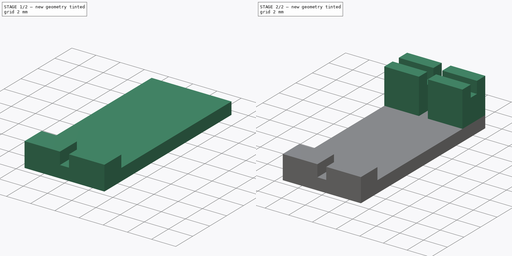
[diagram: build sequence overview — one tinted view per stage of 2, left to right]
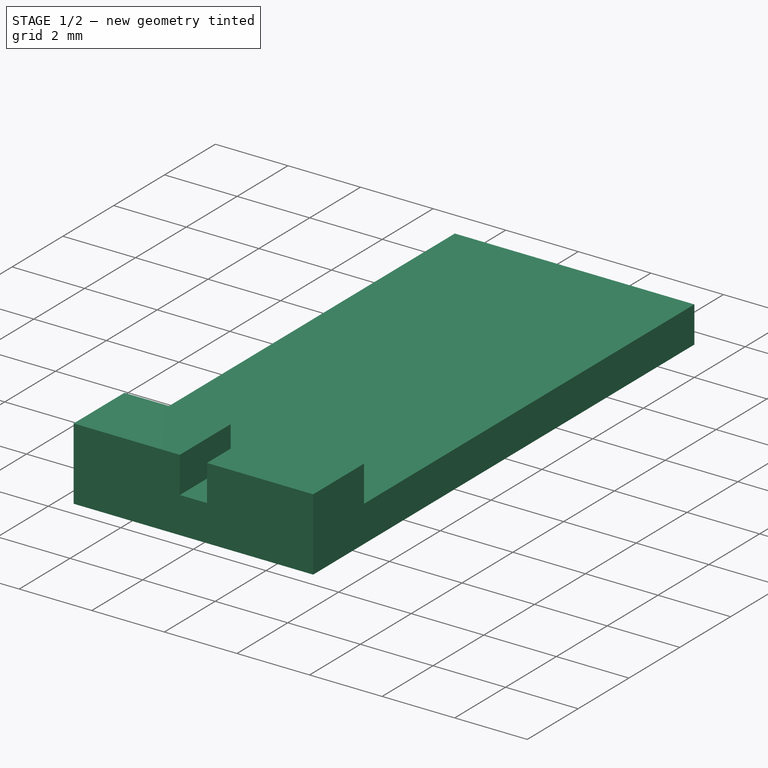
[diagram: stage 1 of 2 — iso view after this stage's code; geometry added in this stage tinted green]
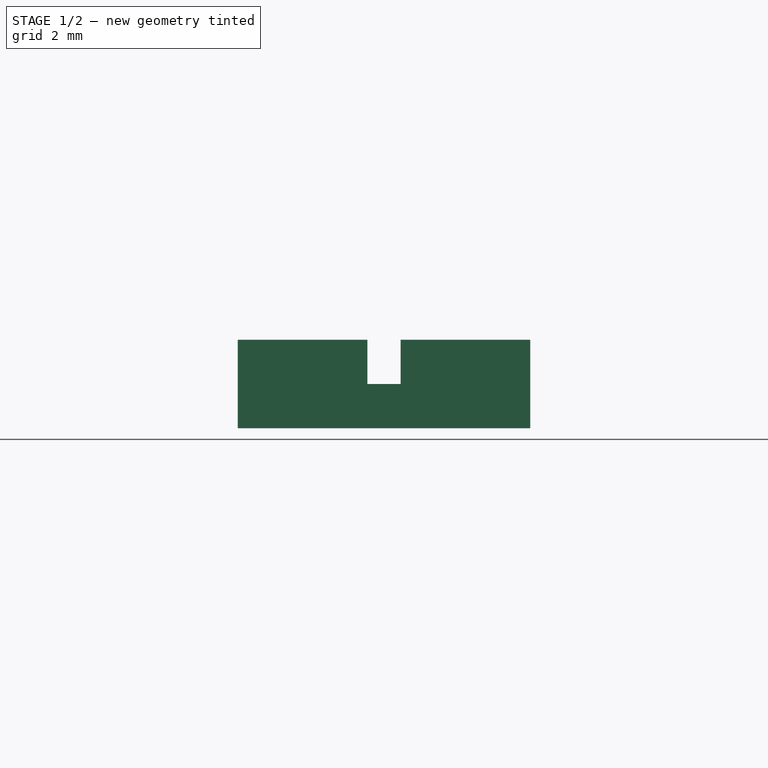
[diagram: stage 1 of 2 — front view after this stage's code; geometry added in this stage tinted green]
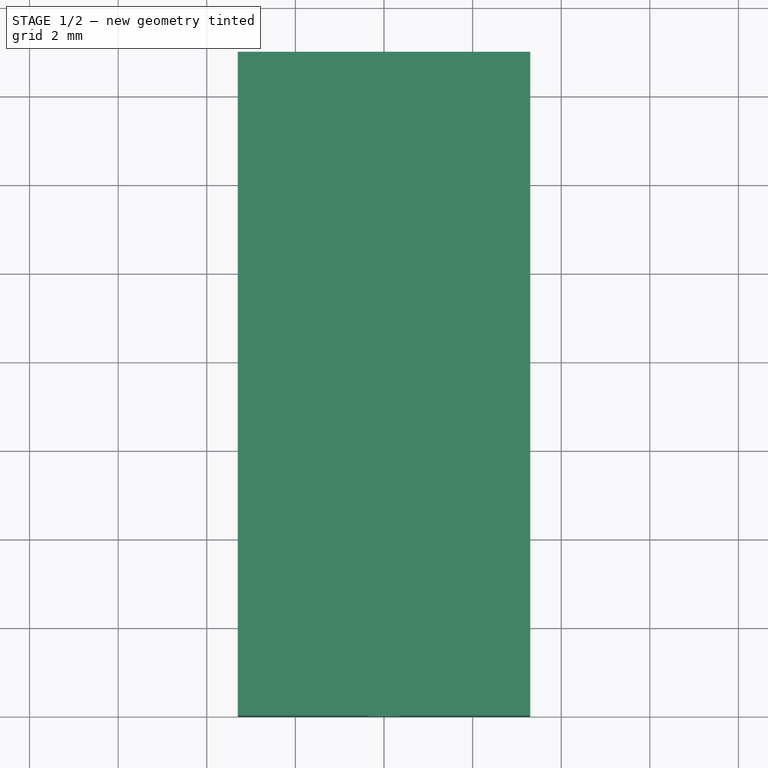
[diagram: stage 1 of 2 — top view after this stage's code; geometry added in this stage tinted green]
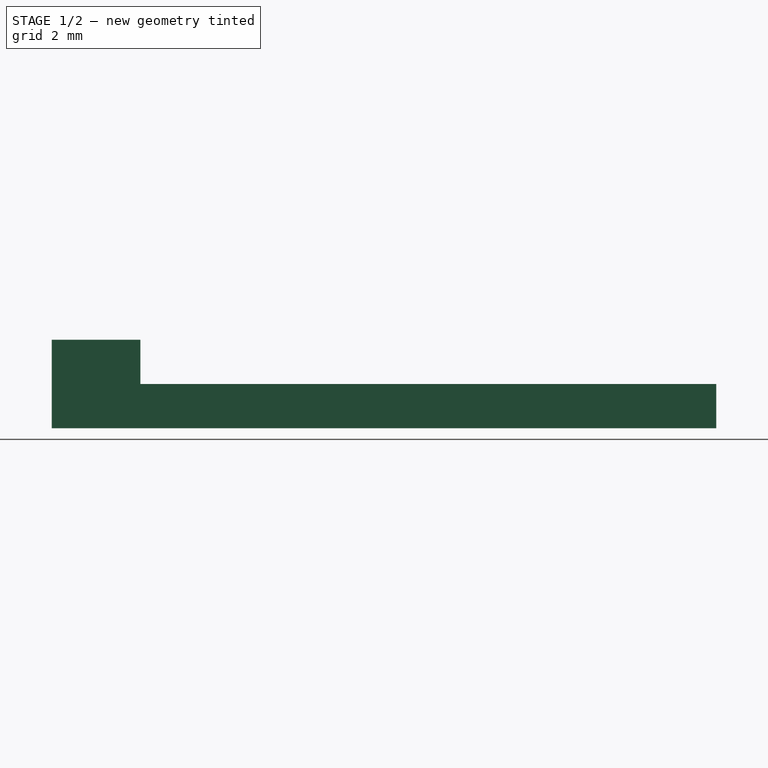
[diagram: stage 1 of 2 — right view after this stage's code; geometry added in this stage tinted green]
FCSTD DOCUMENT  (FreeCAD 0.16R6707 (Git))
Label: BallBoopSensor
License: All rights reserved
LicenseURL: http://en.wikipedia.org/wiki/All_rights_reserved
objects: Sketcher::SketchObject×4, PartDesign::Pad×3, PartDesign::Pocket×1
note: 12 computed .brp shape members not serialized (recipe doc carries the construction recipe); baked Part::Feature solids carry a one-line shape summary decoded from their .brp

FEATURE [Sketcher::SketchObject] Sketch
  sketch-geometry (4):
    g0: LineSegment StartX=-3.3 StartY=0 StartZ=0 EndX=3.3 EndY=0 EndZ=0
    g1: LineSegment StartX=3.3 StartY=0 StartZ=0 EndX=3.3 EndY=15 EndZ=0
    g2: LineSegment StartX=3.3 StartY=15 StartZ=0 EndX=-3.3 EndY=15 EndZ=0
    g3: LineSegment StartX=-3.3 StartY=15 StartZ=0 EndX=-3.3 EndY=0 EndZ=0
  constraints (12):
    c: Coincident(g0,g1)
    c: Coincident(g1,g2)
    c: Coincident(g2,g3)
    c: Coincident(g3,g0)
    c: Horizontal(g0)
    c: Horizontal(g2)
    c: Vertical(g1)
    c: Vertical(g3)
    c: PointOnObject(g0,g-1)
    c: Symmetric(g0,g0,g-2)
    c: Distance(g0) = 6.6
    c: Distance(g3) = 15
FEATURE [PartDesign::Pad] Pad
  Length = 1
  Length2 = 100
  Sketch = -> Sketch
  Type = 0
FEATURE [Sketcher::SketchObject] Sketch001
  ExternalGeometry = -> [Pad]
  Placement = pos=(0,0,1) rot=(0,0,1;0rad)
  Support = -> Pad [Face6]
  sketch-geometry (8):
    g0: LineSegment StartX=-3.3 StartY=0 StartZ=0 EndX=-0.375 EndY=0 EndZ=0
    g1: LineSegment StartX=-0.375 StartY=0 StartZ=0 EndX=-0.375 EndY=2 EndZ=0
    g2: LineSegment StartX=-0.375 StartY=2 StartZ=0 EndX=-3.3 EndY=2 EndZ=0
    g3: LineSegment StartX=-3.3 StartY=2 StartZ=0 EndX=-3.3 EndY=0 EndZ=0
    g4: LineSegment StartX=0.375 StartY=2 StartZ=0 EndX=3.3 EndY=2 EndZ=0
    g5: LineSegment StartX=3.3 StartY=2 StartZ=0 EndX=3.3 EndY=0 EndZ=0
    g6: LineSegment StartX=3.3 StartY=0 StartZ=0 EndX=0.375 EndY=0 EndZ=0
    g7: LineSegment StartX=0.375 StartY=0 StartZ=0 EndX=0.375 EndY=2 EndZ=0
  constraints (21):
    c: Coincident(g0,g1)
    c: Coincident(g1,g2)
    c: Coincident(g2,g3)
    c: Coincident(g3,g0)
    c: Horizontal(g0)
    c: Horizontal(g2)
    c: Vertical(g1)
    c: Vertical(g3)
    c: Coincident(g4,g5)
    c: Coincident(g5,g6)
    c: Coincident(g6,g7)
    c: Coincident(g7,g4)
    c: Horizontal(g4)
    c: Horizontal(g6)
    c: Vertical(g5)
    c: Vertical(g7)
    c: Symmetric(g1,g4,g-2)
    c: Symmetric(g0,g5,g-2)
    c: Coincident(g0,g-3)
    c: Distance(g0,g6) = 0.75
    c: Distance(g1) = 2
FEATURE [PartDesign::Pad] Pad001
  Length = 1
  Length2 = 100
  Sketch = -> Sketch001
  Type = 0
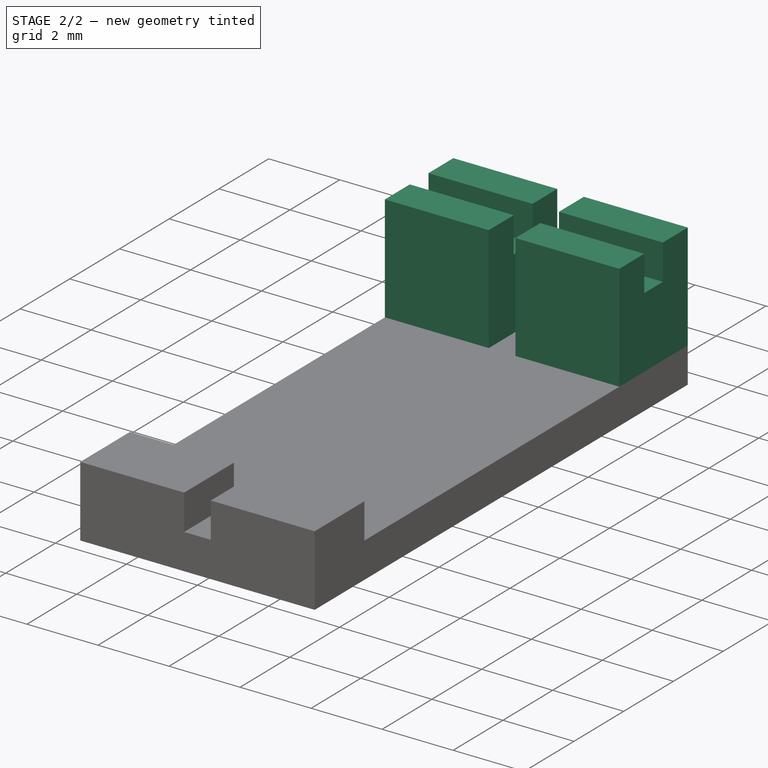
[diagram: stage 2 of 2 — iso view after this stage's code; geometry added in this stage tinted green]
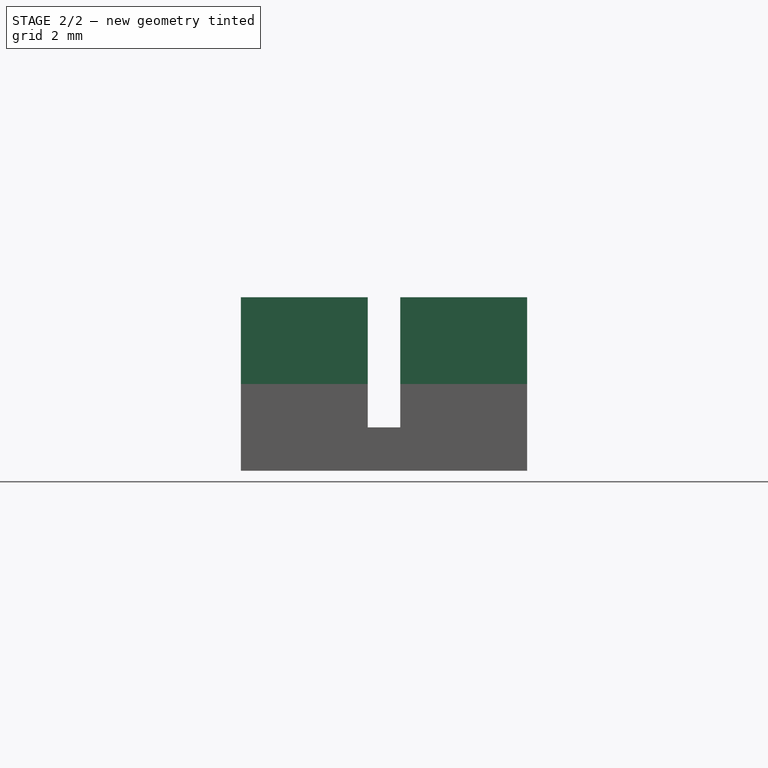
[diagram: stage 2 of 2 — front view after this stage's code; geometry added in this stage tinted green]
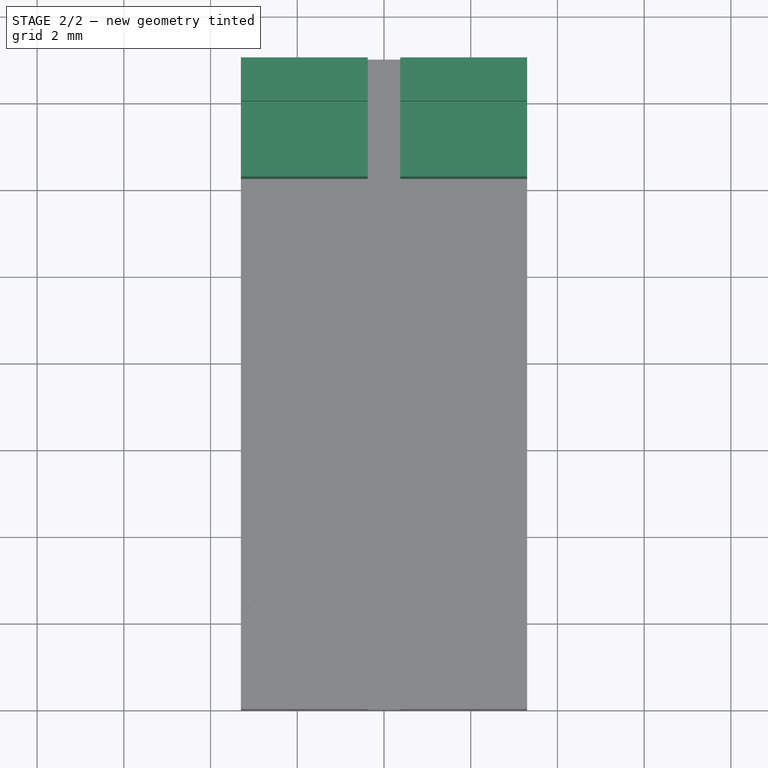
[diagram: stage 2 of 2 — top view after this stage's code; geometry added in this stage tinted green]
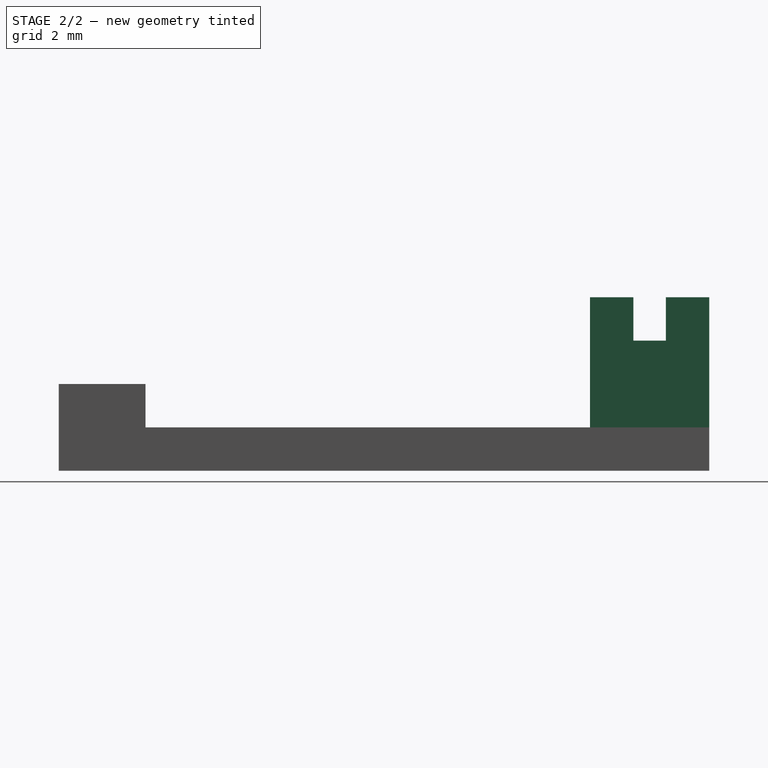
[diagram: stage 2 of 2 — right view after this stage's code; geometry added in this stage tinted green]
FEATURE [Sketcher::SketchObject] Sketch002
  ExternalGeometry = -> [Pad001]
  Placement = pos=(-3.3,0,0) rot=(0.57735,-0.57735,-0.57735;2.0944rad)
  Support = -> Pad001 [Face5]
  sketch-geometry (8):
    g0: LineSegment StartX=-15 StartY=0 StartZ=0 EndX=-12.25 EndY=0 EndZ=0
    g1: LineSegment StartX=-12.25 StartY=0 StartZ=0 EndX=-12.25 EndY=4 EndZ=0
    g2: LineSegment StartX=-15 StartY=4 StartZ=0 EndX=-15 EndY=0 EndZ=0
    g3: LineSegment StartX=-15 StartY=4 StartZ=0 EndX=-14 EndY=4 EndZ=0
    g4: LineSegment StartX=-14 StartY=4 StartZ=0 EndX=-14 EndY=3 EndZ=0
    g5: LineSegment StartX=-14 StartY=3 StartZ=0 EndX=-13.25 EndY=3 EndZ=0
    g6: LineSegment StartX=-13.25 StartY=3 StartZ=0 EndX=-13.25 EndY=4 EndZ=0
    g7: LineSegment StartX=-13.25 StartY=4 StartZ=0 EndX=-12.25 EndY=4 EndZ=0
  constraints (23):
    c: Coincident(g0,g1)
    c: Coincident(g2,g0)
    c: Horizontal(g0)
    c: Vertical(g1)
    c: Vertical(g2)
    c: Coincident(g0,g-3)
    c: Equal(g2,g1)
    c: Coincident(g2,g3)
    c: Horizontal(g3)
    c: Coincident(g3,g4)
    c: Vertical(g4)
    c: Coincident(g4,g5)
    c: Horizontal(g5)
    c: Coincident(g5,g6)
    c: Vertical(g6)
    c: Coincident(g6,g7)
    c: Coincident(g7,g1)
    c: Horizontal(g7)
    c: Equal(g3,g7)
    c: Distance(g5) = 0.75
    c: Distance(g4) = 1
    c: Distance(g3) = 1
    c: DistanceY(g-3,g4) = 2
FEATURE [PartDesign::Pad] Pad002
  Length = 6.6
  Length2 = 100
  Reversed = true
  Sketch = -> Sketch002
  Type = 0
FEATURE [Sketcher::SketchObject] Sketch003
  ExternalGeometry = -> [Pad002]
  Placement = pos=(0,0,0) rot=(1,0,0;1.5708rad)
  Support = -> Pad002 [Face4]
  sketch-geometry (4):
    g0: LineSegment StartX=-0.375 StartY=1 StartZ=0 EndX=0.375 EndY=1 EndZ=0
    g1: LineSegment StartX=0.375 StartY=1 StartZ=0 EndX=0.375 EndY=4 EndZ=0
    g2: LineSegment StartX=0.375 StartY=4 StartZ=0 EndX=-0.375 EndY=4 EndZ=0
    g3: LineSegment StartX=-0.375 StartY=4 StartZ=0 EndX=-0.375 EndY=1 EndZ=0
  constraints (11):
    c: Coincident(g0,g1)
    c: Coincident(g1,g2)
    c: Coincident(g2,g3)
    c: Coincident(g3,g0)
    c: Horizontal(g0)
    c: Horizontal(g2)
    c: Vertical(g1)
    c: Vertical(g3)
    c: Coincident(g0,g-4)
    c: PointOnObject(g1,g-3)
    c: Symmetric(g0,g0,g-2)
FEATURE [PartDesign::Pocket] Pocket
  Length = 5
  Sketch = -> Sketch003
  Type = 1
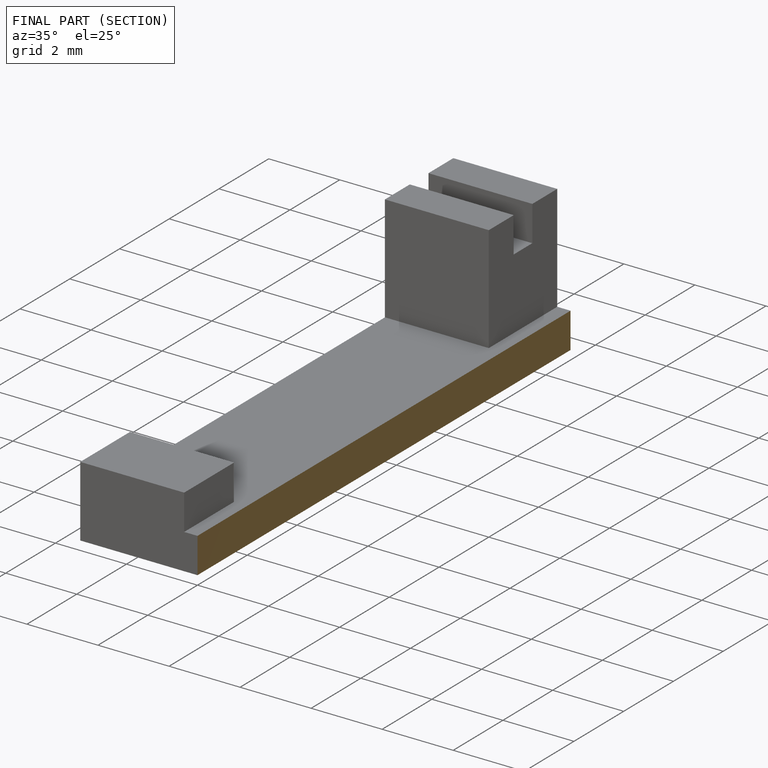
[diagram: finished part — half-section view (interior)]
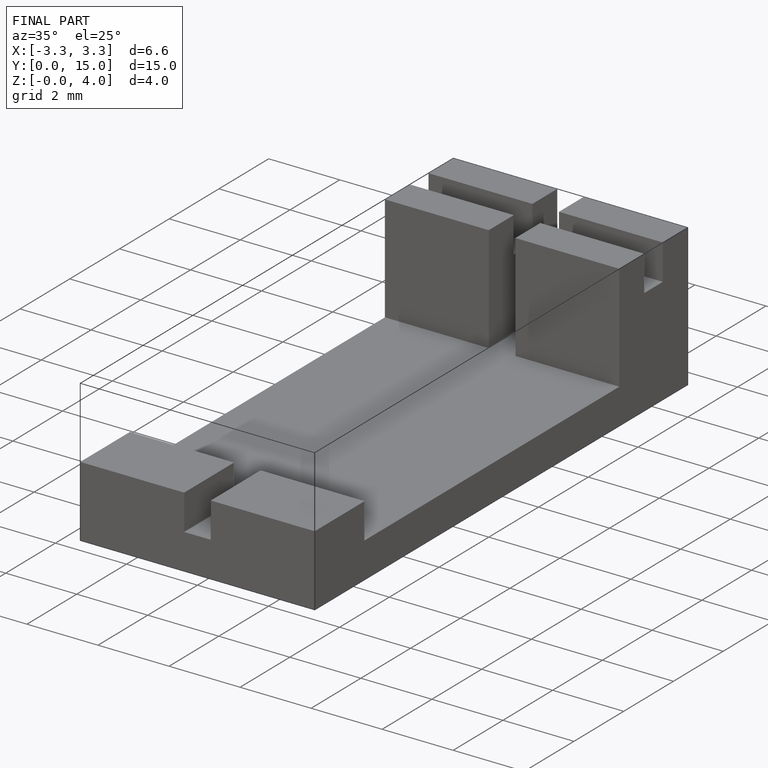
[diagram: finished part — iso view with bounding-box wireframe]
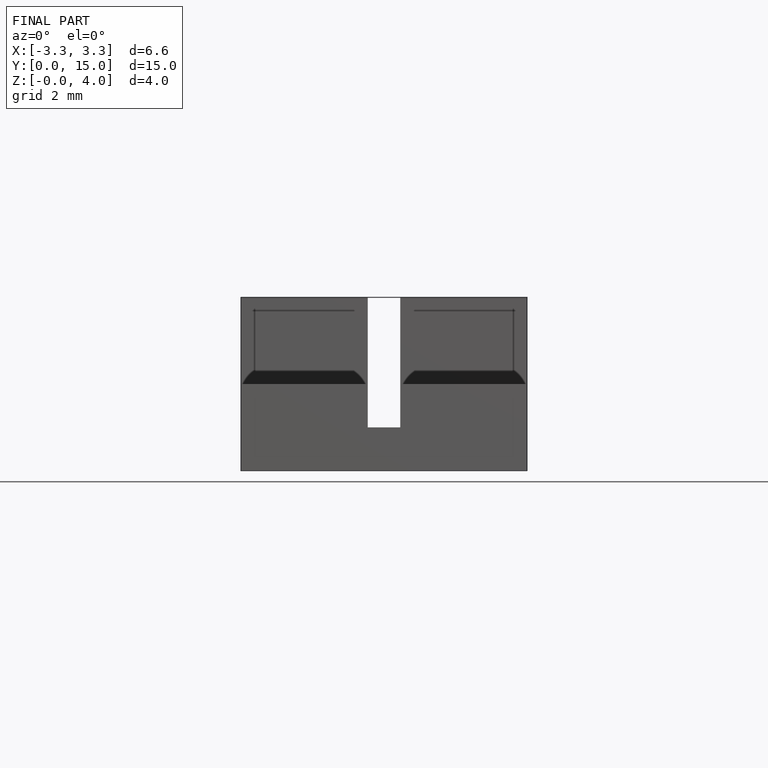
[diagram: finished part — front view with bounding-box wireframe]
